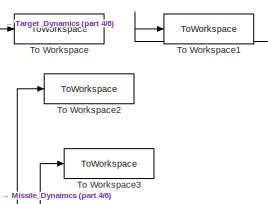
[diagram: root canvas - part 1/6, top left region]
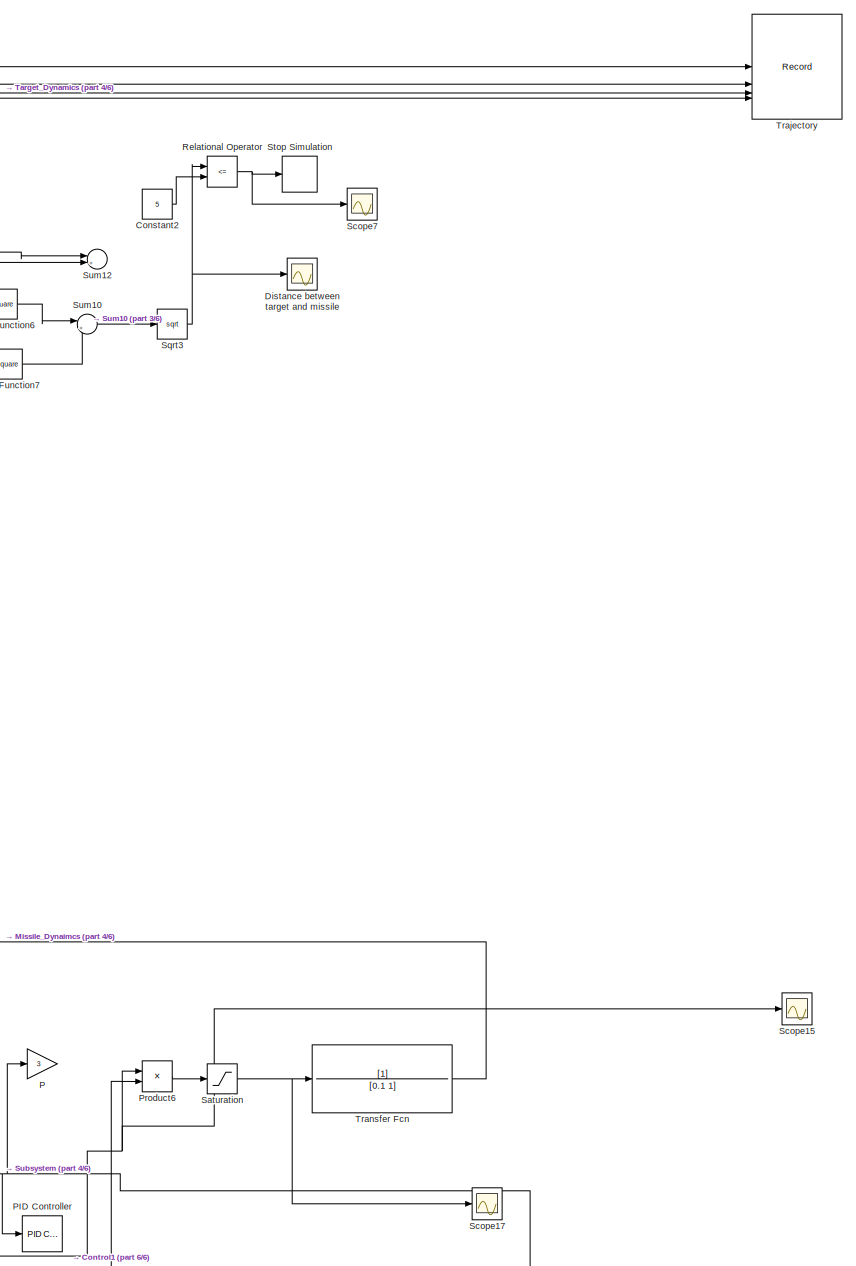
[diagram: root canvas - part 2/6, top right region]
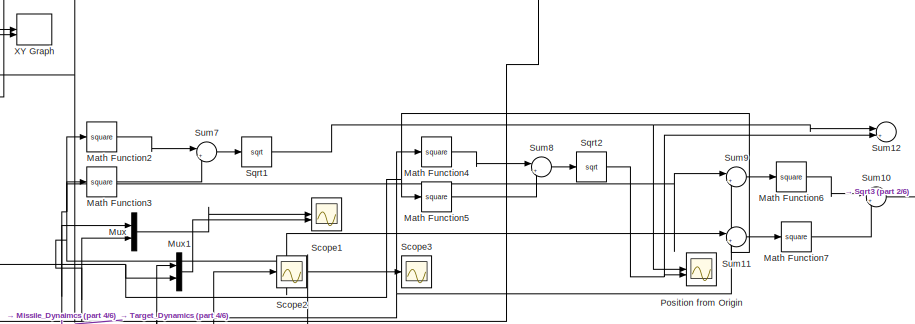
[diagram: root canvas - part 3/6, top center region]
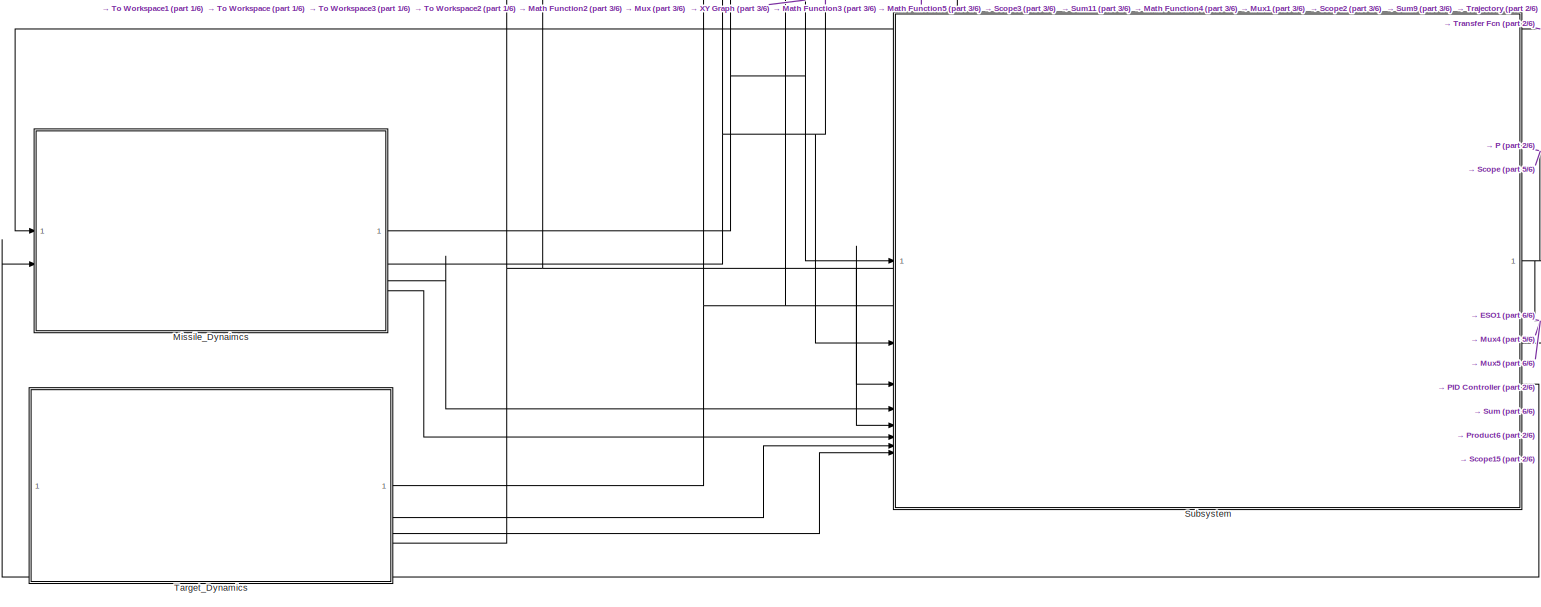
[diagram: root canvas - part 4/6, middle left region]
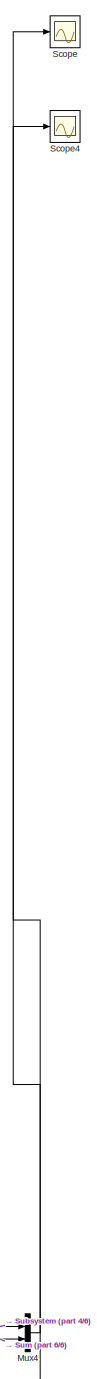
[diagram: root canvas - part 5/6, middle right region]
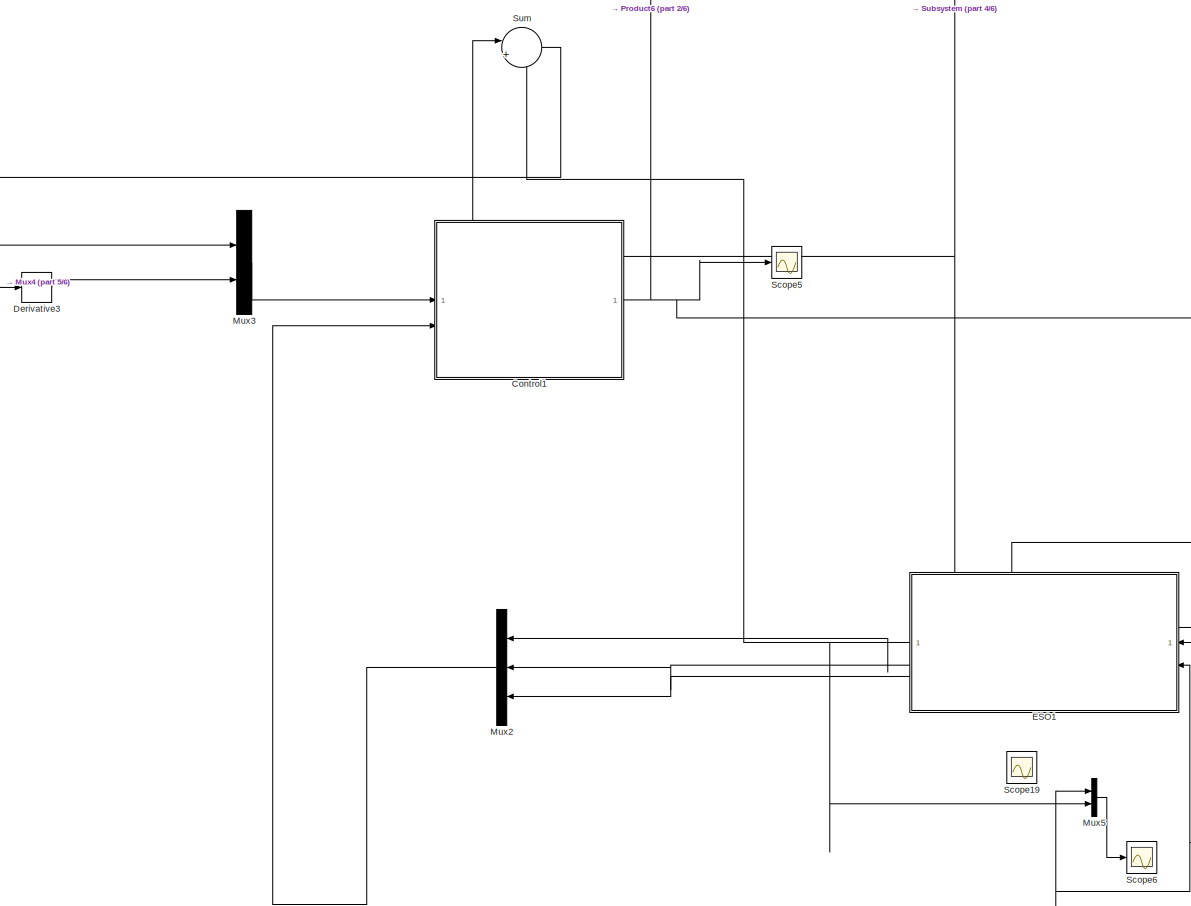
[diagram: root canvas - part 6/6, bottom right region]
MODEL slx_feaea4ac9e3f
KIND model
CONFIG AbsTol = auto
CONFIG EnableMultiTasking = off
CONFIG FixedStep = 0.01
CONFIG MaxStep = auto
CONFIG MinStep = auto
CONFIG RelTol = 1e-3
CONFIG SampleTimeConstraint = Unconstrained
CONFIG SolverName = ode4
CONFIG StartTime = 0.0
CONFIG StopTime = 100
BLOCK [Constant] Constant2
  Value = 5
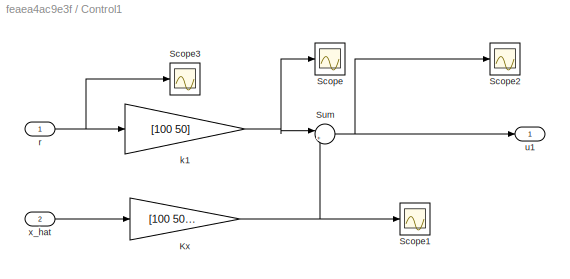
BLOCK [SubSystem] Control1
BLOCK [Gain] Control1/Kx
  Gain = [100 50 1]
  Multiplication = Matrix(K*u)
BLOCK [Scope] Control1/Scope
  Floating = off
  NumInputPorts = 1
  ScopeSpecificationString = Simulink.scopes.TimeScopeBlockCfg('CurrentConfiguration', extmgr.ConfigurationSet(extmgr.Configuration('Core','General UI',true),extmgr.Configuration('Core','Source UI',true),extmgr.Configuration('Sources','WiredSimulink',true,'DataLoggingVariableName','ScopeData1'),extmgr.Configuration('Visuals','Time Domain',true,'SerializedDisplays',{struct('MinYLimReal','-12501250.00000','MaxYLimReal','1125112...<+1611ch>
BLOCK [Scope] Control1/Scope1
  Floating = off
  NumInputPorts = 1
  ScopeSpecificationString = Simulink.scopes.TimeScopeBlockCfg('CurrentConfiguration', extmgr.ConfigurationSet(extmgr.Configuration('Core','General UI',true),extmgr.Configuration('Core','Source UI',true),extmgr.Configuration('Sources','WiredSimulink',true,'DataLoggingVariableName','ScopeData2'),extmgr.Configuration('Visuals','Time Domain',true,'SerializedDisplays',{struct('MinYLimReal','-2.49122','MaxYLimReal','22.42098','YLa...<+1520ch>
BLOCK [Scope] Control1/Scope2
  Floating = off
  NumInputPorts = 1
  ScopeSpecificationString = Simulink.scopes.TimeScopeBlockCfg('CurrentConfiguration', extmgr.ConfigurationSet(extmgr.Configuration('Core','General UI',true),extmgr.Configuration('Core','Source UI',true),extmgr.Configuration('Sources','WiredSimulink',true,'DataLoggingVariableName','ScopeData3'),extmgr.Configuration('Visuals','Time Domain',true,'SerializedDisplays',{struct('MinYLimReal','-19825.72604','MaxYLimReal','29326.5091...<+1516ch>
BLOCK [Scope] Control1/Scope3
  Floating = off
  NumInputPorts = 1
  ScopeSpecificationString = Simulink.scopes.TimeScopeBlockCfg('CurrentConfiguration', extmgr.ConfigurationSet(extmgr.Configuration('Core','General UI',true),extmgr.Configuration('Core','Source UI',true),extmgr.Configuration('Sources','WiredSimulink',true,'DataLoggingVariableName','ScopeData34'),extmgr.Configuration('Visuals','Time Domain',true,'SerializedDisplays',{struct('MinYLimReal','-0.00229','MaxYLimReal','0.00193','YLa...<+1547ch>
BLOCK [Sum] Control1/Sum
  Inputs = |+-
BLOCK [Gain] Control1/k1
  Gain = [100 50]
  Multiplication = Matrix(K*u)
BLOCK [Inport] Control1/r
BLOCK [Outport] Control1/u1
BLOCK [Inport] Control1/x_hat
  Port = 2
BLOCK [Derivative] Derivative3
BLOCK [Scope] Distance between target and missile
  Floating = off
  NumInputPorts = 1
  ScopeSpecificationString = Simulink.scopes.TimeScopeBlockCfg('CurrentConfiguration', extmgr.ConfigurationSet(extmgr.Configuration('Core','General UI',true),extmgr.Configuration('Core','Source UI',true),extmgr.Configuration('Sources','WiredSimulink',true,'DataLoggingVariableName','ScopeData1'),extmgr.Configuration('Visuals','Time Domain',true,'SerializedDisplays',{struct('MinYLimReal','-1373.20308','MaxYLimReal','12374.80034...<+1669ch>
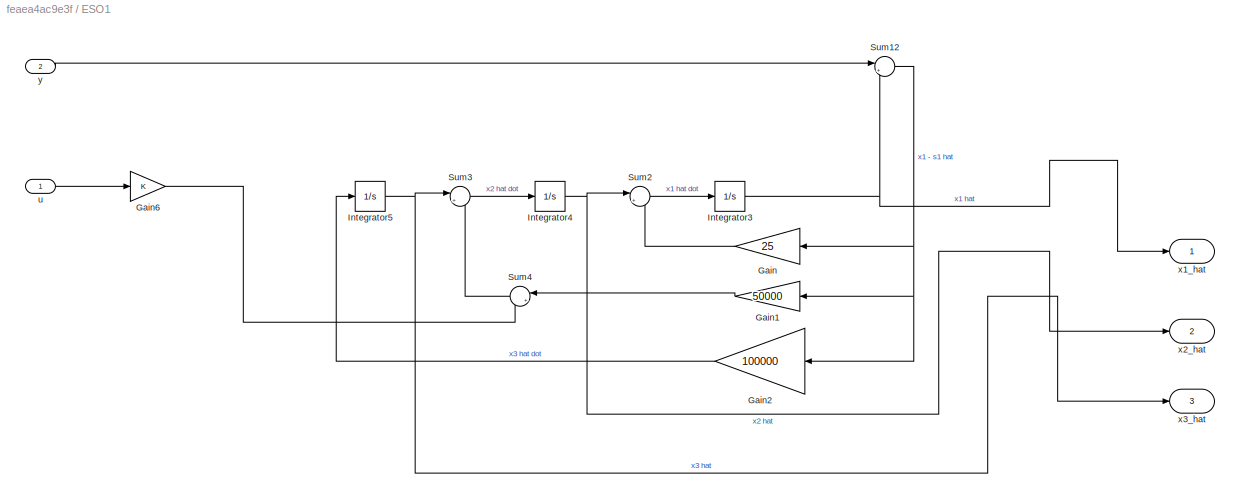
BLOCK [SubSystem] ESO1
  NameLocation = top
BLOCK [Gain] ESO1/Gain
  Gain = 25
  NameLocation = top
BLOCK [Gain] ESO1/Gain1
  Gain = 50000
  NameLocation = top
BLOCK [Gain] ESO1/Gain2
  Gain = 100000
  NameLocation = top
BLOCK [Gain] ESO1/Gain6
BLOCK [Integrator] ESO1/Integrator3
BLOCK [Integrator] ESO1/Integrator4
BLOCK [Integrator] ESO1/Integrator5
BLOCK [Sum] ESO1/Sum12
  Inputs = |+-
BLOCK [Sum] ESO1/Sum2
  Inputs = |++
BLOCK [Sum] ESO1/Sum3
  Inputs = |++
BLOCK [Sum] ESO1/Sum4
  Inputs = |++
  NameLocation = top
BLOCK [Inport] ESO1/u
BLOCK [Outport] ESO1/x1_hat
BLOCK [Outport] ESO1/x2_hat
  Port = 2
BLOCK [Outport] ESO1/x3_hat
  Port = 3
BLOCK [Inport] ESO1/y
  Port = 2
BLOCK [Math] Math Function2
  Operator = square
BLOCK [Math] Math Function3
  Operator = square
BLOCK [Math] Math Function4
  NameLocation = left
  Operator = square
BLOCK [Math] Math Function5
  Operator = square
BLOCK [Math] Math Function6
  Operator = square
BLOCK [Math] Math Function7
  Operator = square
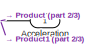
[diagram: Missile_Dynaimcs - part 1/3, top right region]
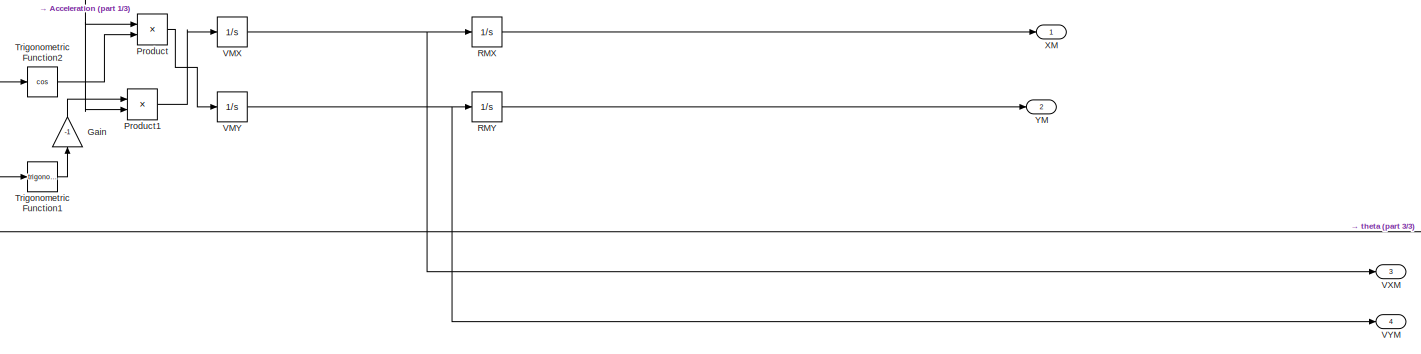
[diagram: Missile_Dynaimcs - part 2/3, center side, full height]
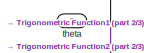
[diagram: Missile_Dynaimcs - part 3/3, top right region]
BLOCK [SubSystem] Missile_Dynaimcs
BLOCK [Inport] Missile_Dynaimcs/Acceleration
BLOCK [Gain] Missile_Dynaimcs/Gain
  Gain = -1
  NameLocation = right
BLOCK [Product] Missile_Dynaimcs/Product
BLOCK [Product] Missile_Dynaimcs/Product1
BLOCK [Integrator] Missile_Dynaimcs/RMX
BLOCK [Integrator] Missile_Dynaimcs/RMY
  InitialCondition = 3000
BLOCK [Trigonometry] Missile_Dynaimcs/Trigonometric Function1
BLOCK [Trigonometry] Missile_Dynaimcs/Trigonometric Function2
  Operator = cos
BLOCK [Integrator] Missile_Dynaimcs/VMX
  InitialCondition = 600
BLOCK [Integrator] Missile_Dynaimcs/VMY
  InitialCondition = 100
BLOCK [Outport] Missile_Dynaimcs/VXM
  Port = 3
BLOCK [Outport] Missile_Dynaimcs/VYM
  Port = 4
BLOCK [Outport] Missile_Dynaimcs/XM
BLOCK [Outport] Missile_Dynaimcs/YM
  Port = 2
BLOCK [Inport] Missile_Dynaimcs/theta
  Port = 2
BLOCK [Mux] Mux
  DisplayOption = bar
  Inputs = 2
BLOCK [Mux] Mux1
  DisplayOption = bar
  Inputs = 2
BLOCK [Mux] Mux2
  DisplayOption = bar
  Inputs = 3
  NameLocation = top
BLOCK [Mux] Mux3
  DisplayOption = bar
  Inputs = 2
BLOCK [Mux] Mux4
  DisplayOption = bar
  Inputs = 2
BLOCK [Mux] Mux5
  DisplayOption = bar
  Inputs = 2
BLOCK [Gain] P
  Gain = 3
BLOCK [Reference] PID Controller  REF=slpidlib/PID Controller
  LibrarySourceBlock = simulink/Continuous/PID Controller
  SourceBlock = slpidlib/PID Controller
  SourceType = PID 1dof
BLOCK [Scope] Position from Origin
  Floating = off
  NumInputPorts = 2
  ScopeSpecificationString = Simulink.scopes.TimeScopeBlockCfg('CurrentConfiguration', extmgr.ConfigurationSet(extmgr.Configuration('Core','General UI',true),extmgr.Configuration('Core','Source UI',true),extmgr.Configuration('Sources','WiredSimulink',true),extmgr.Configuration('Visuals','Time Domain',true,'SerializedDisplays',{struct('MinYLimReal','-803.82561','MaxYLimReal','37234.43052','YLabelReal','','MinYLimMag',' 0.00000...<+1874ch>
BLOCK [Product] Product6
BLOCK [RelationalOperator] Relational Operator
  InputSameDT = off
  Operator = <=
  OutDataTypeStr = boolean
  RndMeth = Simplest
BLOCK [Saturate] Saturation
  LowerLimit = -50
  UpperLimit = 50
BLOCK [Scope] Scope
  Floating = off
  NumInputPorts = 1
  ScopeSpecificationString = Simulink.scopes.TimeScopeBlockCfg('CurrentConfiguration', extmgr.ConfigurationSet(extmgr.Configuration('Core','General UI',true),extmgr.Configuration('Core','Source UI',true),extmgr.Configuration('Sources','WiredSimulink',true,'DataLoggingVariableName','ScopeData14'),extmgr.Configuration('Visuals','Time Domain',true,'SerializedDisplays',{struct('MinYLimReal','-0.00125','MaxYLimReal','0.00014','YLa...<+1483ch>
BLOCK [Scope] Scope1
  Floating = off
  NumInputPorts = 2
  ScopeSpecificationString = Simulink.scopes.TimeScopeBlockCfg('CurrentConfiguration', extmgr.ConfigurationSet(extmgr.Configuration('Core','General UI',true),extmgr.Configuration('Core','Source UI',true),extmgr.Configuration('Sources','WiredSimulink',true,'DataLoggingVariableName','ScopeData1'),extmgr.Configuration('Visuals','Time Domain',true,'SerializedDisplays',{struct('MinYLimReal','-5125.01431','MaxYLimReal','46125.12875...<+1525ch>
BLOCK [Scope] Scope15
  Floating = off
  NumInputPorts = 1
  ScopeSpecificationString = Simulink.scopes.TimeScopeBlockCfg('CurrentConfiguration', extmgr.ConfigurationSet(extmgr.Configuration('Core','General UI',true),extmgr.Configuration('Core','Source UI',true),extmgr.Configuration('Sources','WiredSimulink',true,'DataLoggingVariableName','ScopeData18'),extmgr.Configuration('Visuals','Time Domain',true,'SerializedDisplays',{struct('MinYLimReal','389.59084','MaxYLimReal','456.71213','...<+1474ch>
BLOCK [Scope] Scope17
  Floating = off
  NumInputPorts = 1
  ScopeSpecificationString = Simulink.scopes.TimeScopeBlockCfg('CurrentConfiguration', extmgr.ConfigurationSet(extmgr.Configuration('Core','General UI',true),extmgr.Configuration('Core','Source UI',true),extmgr.Configuration('Sources','WiredSimulink',true,'DataLoggingVariableName','ScopeData19'),extmgr.Configuration('Visuals','Time Domain',true,'SerializedDisplays',{struct('MinYLimReal','19.81187','MaxYLimReal','20.02153','YL...<+1484ch>
BLOCK [Scope] Scope19
  Floating = off
  NumInputPorts = 1
  ScopeSpecificationString = Simulink.scopes.TimeScopeBlockCfg('CurrentConfiguration', extmgr.ConfigurationSet(extmgr.Configuration('Core','General UI',true),extmgr.Configuration('Core','Source UI',true),extmgr.Configuration('Sources','WiredSimulink',true,'DataLoggingVariableName','ScopeData20'),extmgr.Configuration('Visuals','Time Domain',true,'SerializedDisplays',{struct('MinYLimReal','-4.80287','MaxYLimReal','2.83483','YLa...<+1535ch>
BLOCK [Scope] Scope2
  Floating = off
  NumInputPorts = 1
  ScopeSpecificationString = Simulink.scopes.TimeScopeBlockCfg('CurrentConfiguration', extmgr.ConfigurationSet(extmgr.Configuration('Core','General UI',true),extmgr.Configuration('Core','Source UI',true),extmgr.Configuration('Sources','WiredSimulink',true,'DataLoggingVariableName','ScopeData2'),extmgr.Configuration('Visuals','Time Domain',true,'SerializedDisplays',{struct('MinYLimReal','4756.045','MaxYLimReal','63289.355','YL...<+1490ch>
BLOCK [Scope] Scope3
  Floating = off
  NumInputPorts = 1
  ScopeSpecificationString = Simulink.scopes.TimeScopeBlockCfg('CurrentConfiguration', extmgr.ConfigurationSet(extmgr.Configuration('Core','General UI',true),extmgr.Configuration('Core','Source UI',true),extmgr.Configuration('Sources','WiredSimulink',true,'DataLoggingVariableName','ScopeData3'),extmgr.Configuration('Visuals','Time Domain',true,'SerializedDisplays',{struct('MinYLimReal','-2228.5335','MaxYLimReal','50056.8015',...<+1471ch>
BLOCK [Scope] Scope4
  Floating = off
  NumInputPorts = 1
  ScopeSpecificationString = Simulink.scopes.TimeScopeBlockCfg('CurrentConfiguration', extmgr.ConfigurationSet(extmgr.Configuration('Core','General UI',true),extmgr.Configuration('Core','Source UI',true),extmgr.Configuration('Sources','WiredSimulink',true,'DataLoggingVariableName','ScopeData15'),extmgr.Configuration('Visuals','Time Domain',true,'SerializedDisplays',{struct('MinYLimReal','-40.98529','MaxYLimReal','10.18515','Y...<+1491ch>
BLOCK [Scope] Scope5
  Floating = off
  NumInputPorts = 1
  ScopeSpecificationString = Simulink.scopes.TimeScopeBlockCfg('CurrentConfiguration', extmgr.ConfigurationSet(extmgr.Configuration('Core','General UI',true),extmgr.Configuration('Core','Source UI',true),extmgr.Configuration('Sources','WiredSimulink',true,'DataLoggingVariableName','ScopeData16'),extmgr.Configuration('Visuals','Time Domain',true,'SerializedDisplays',{struct('MinYLimReal','-166.77681','MaxYLimReal','20.69806','...<+1469ch>
BLOCK [Scope] Scope6
  Floating = off
  NumInputPorts = 1
  ScopeSpecificationString = Simulink.scopes.TimeScopeBlockCfg('CurrentConfiguration', extmgr.ConfigurationSet(extmgr.Configuration('Core','General UI',true),extmgr.Configuration('Core','Source UI',true),extmgr.Configuration('Sources','WiredSimulink',true,'DataLoggingVariableName','ScopeData17'),extmgr.Configuration('Visuals','Time Domain',true,'SerializedDisplays',{struct('MinYLimReal','-0.21651743','MaxYLimReal','-0.2165170...<+1519ch>
BLOCK [Scope] Scope7
  Floating = off
  NumInputPorts = 1
  ScopeSpecificationString = Simulink.scopes.TimeScopeBlockCfg('CurrentConfiguration', extmgr.ConfigurationSet(extmgr.Configuration('Core','General UI',true),extmgr.Configuration('Core','Source UI',true),extmgr.Configuration('Sources','WiredSimulink',true,'DataLoggingVariableName','ScopeData2'),extmgr.Configuration('Visuals','Time Domain',true,'SerializedDisplays',{struct('MinYLimReal','-0.125','MaxYLimReal','1.125','YLabelRe...<+1900ch>
BLOCK [Sqrt] Sqrt1
BLOCK [Sqrt] Sqrt2
BLOCK [Sqrt] Sqrt3
BLOCK [Stop] Stop Simulation
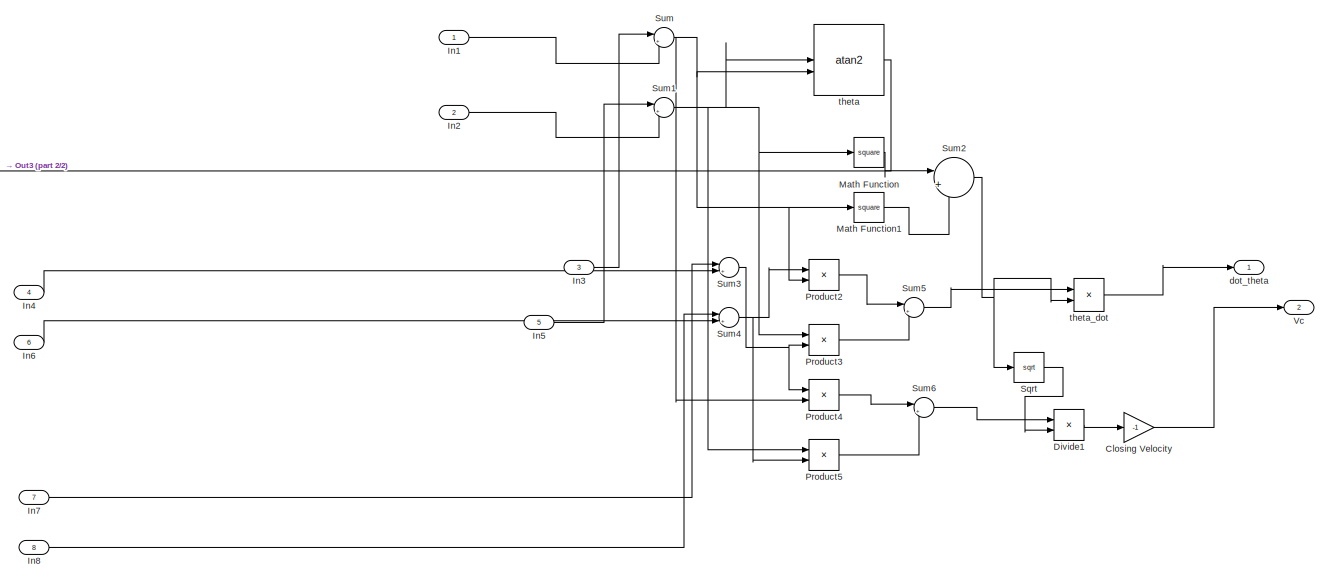
[diagram: Subsystem - part 1/2, most of the canvas]
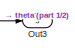
[diagram: Subsystem - part 2/2, middle left region]
BLOCK [SubSystem] Subsystem
BLOCK [Gain] Subsystem/Closing Velocity
  Gain = -1
BLOCK [Product] Subsystem/Divide1
  Inputs = */
BLOCK [Inport] Subsystem/In1
BLOCK [Inport] Subsystem/In2
  Port = 2
BLOCK [Inport] Subsystem/In3
  Port = 3
BLOCK [Inport] Subsystem/In4
  Port = 4
BLOCK [Inport] Subsystem/In5
  Port = 5
BLOCK [Inport] Subsystem/In6
  Port = 6
BLOCK [Inport] Subsystem/In7
  Port = 7
BLOCK [Inport] Subsystem/In8
  Port = 8
BLOCK [Math] Subsystem/Math Function
  Operator = square
BLOCK [Math] Subsystem/Math Function1
  Operator = square
BLOCK [Outport] Subsystem/Out3
  Port = 3
BLOCK [Product] Subsystem/Product2
BLOCK [Product] Subsystem/Product3
BLOCK [Product] Subsystem/Product4
BLOCK [Product] Subsystem/Product5
BLOCK [Sqrt] Subsystem/Sqrt
BLOCK [Sum] Subsystem/Sum
  Inputs = |+-
BLOCK [Sum] Subsystem/Sum1
  Inputs = |+-
BLOCK [Sum] Subsystem/Sum2
  Inputs = |++
BLOCK [Sum] Subsystem/Sum3
  Inputs = |+-
BLOCK [Sum] Subsystem/Sum4
  Inputs = |+-
BLOCK [Sum] Subsystem/Sum5
  Inputs = |+-
BLOCK [Sum] Subsystem/Sum6
  Inputs = |++
BLOCK [Outport] Subsystem/Vc
  Port = 2
BLOCK [Outport] Subsystem/dot_theta
BLOCK [Trigonometry] Subsystem/theta
  Operator = atan2
BLOCK [Product] Subsystem/theta_dot
  Inputs = */
BLOCK [Sum] Sum
  Inputs = |++
BLOCK [Sum] Sum10
  Inputs = |++
BLOCK [Sum] Sum11
  Inputs = |+-
BLOCK [Sum] Sum12
  Inputs = |+-
BLOCK [Sum] Sum7
  Inputs = |++
BLOCK [Sum] Sum8
  Inputs = |++
BLOCK [Sum] Sum9
  Inputs = |+-
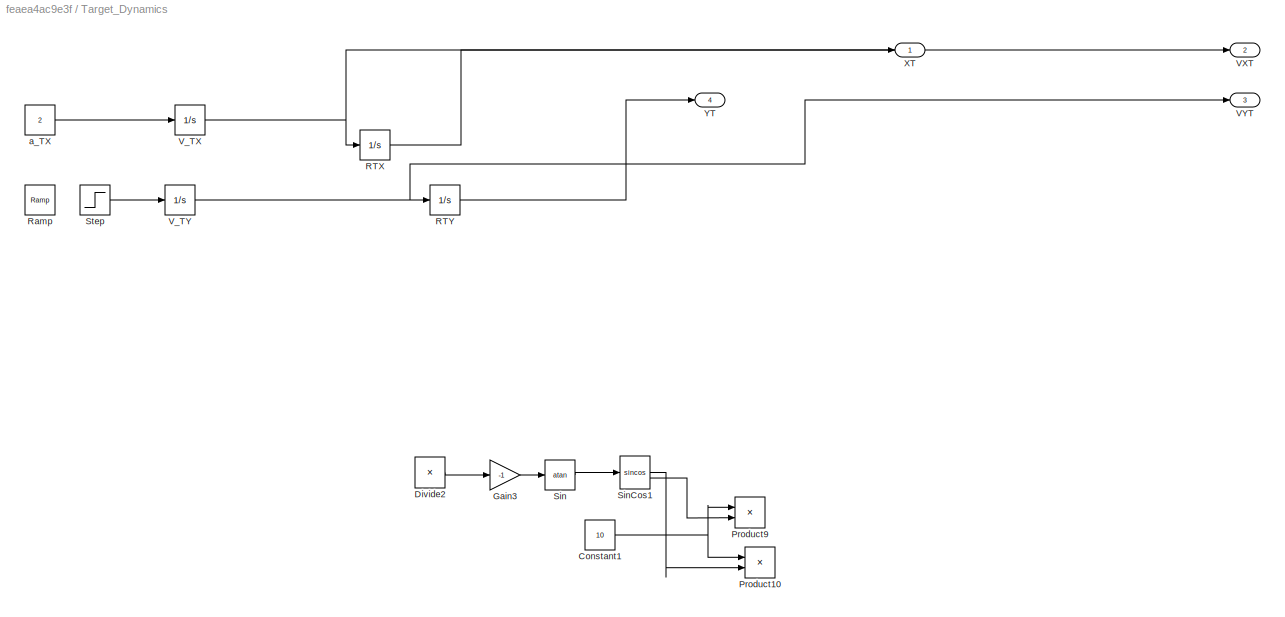
BLOCK [SubSystem] Target_Dynamics
BLOCK [Constant] Target_Dynamics/Constant1
  Commented = on
  Value = 10
BLOCK [Product] Target_Dynamics/Divide2
  Commented = on
  Inputs = */
BLOCK [Gain] Target_Dynamics/Gain3
  Commented = on
  Gain = -1
BLOCK [Product] Target_Dynamics/Product10
  Commented = on
BLOCK [Product] Target_Dynamics/Product9
  Commented = on
BLOCK [Integrator] Target_Dynamics/RTX
  InitialCondition = 11000
BLOCK [Integrator] Target_Dynamics/RTY
  InitialCondition = 3000
BLOCK [Reference] Target_Dynamics/Ramp  REF=simulink/Sources/Ramp
  SourceBlock = simulink/Sources/Ramp
  SourceType = Ramp
BLOCK [Trigonometry] Target_Dynamics/Sin
  Commented = on
  Operator = atan
BLOCK [Trigonometry] Target_Dynamics/SinCos1
  Commented = on
  Operator = sincos
BLOCK [Step] Target_Dynamics/Step
  After = -10
  Before = -4
  SampleTime = 0
  Time = 15
BLOCK [Outport] Target_Dynamics/VXT
  Port = 2
BLOCK [Outport] Target_Dynamics/VYT
  Port = 3
BLOCK [Integrator] Target_Dynamics/V_TX
  InitialCondition = 150
BLOCK [Integrator] Target_Dynamics/V_TY
  InitialCondition = 100
BLOCK [Outport] Target_Dynamics/XT
BLOCK [Outport] Target_Dynamics/YT
  Port = 4
BLOCK [Constant] Target_Dynamics/a_TX
  Value = 2
BLOCK [ToWorkspace] To Workspace
  FixptAsFi = on
  MaxDataPoints = inf
  SampleTime = -1
  SaveFormat = Timeseries
  VariableName = X_t
BLOCK [ToWorkspace] To Workspace1
  FixptAsFi = on
  MaxDataPoints = inf
  SampleTime = -1
  SaveFormat = Timeseries
  VariableName = Y_t
BLOCK [ToWorkspace] To Workspace2
  FixptAsFi = on
  MaxDataPoints = inf
  SampleTime = -1
  SaveFormat = Timeseries
  VariableName = X_M
BLOCK [ToWorkspace] To Workspace3
  FixptAsFi = on
  MaxDataPoints = inf
  SampleTime = -1
  SaveFormat = Timeseries
  VariableName = Y_M
BLOCK [Record] Trajectory
  CompatibilityTag = XY
  FileSettingsInternal = {"entries":[{"content":{"excelSettings":{"content":{},"type":"Streamout.ExcelSettings"}},"type":"Streamout.FileSettingStorage","uuid":""}],"packageUris":["http:\/\/schema.mathworks.com\/mf0\/streamout_blocks\/R2020a"],"version":"1.0"}
  Layout = [1 1]
  SignalsInternal = {"entries":[{"content":{"signals":[{"content":{"blockPath":[],"dimensions":[1],"domain":"","lineColor":"#fe330a","lineWidth":2,"plots":[ 1 ],"port":1,"sid":[""],"signalID":1,"signalName":"Missile_Dynaimcs:1"},"type":"RecordBlkView.Signal","uuid":""},{"content":{"blockPath":[],"dimensions":[1],"domain":"","lineColor":"#d95319","lineWidth":2,"plots":[ 1 ],"port":2,"sid":[""],"signalID":2,"signalName...<+638ch>
  VisualizationBindings = {"xyplotplugin":{"info":[{"series":[{"bindingParametersList":[{"parameter":"X-Axis","signalID":1,"signalName":"Missile_Dynaimcs:1"},{"parameter":"Y-Axis","signalID":2,"signalName":"Missile_Dynaimcs:2"}],"seriesID":0},{"bindingParametersList":[{"parameter":"X-Axis","signalID":3,"signalName":"Target_Dynamics:1"},{"parameter":"Y-Axis","signalID":4,"signalName":"Target_Dynamics:4"}],"seriesID":1}],"su...<+14ch>
BLOCK [TransferFcn] Transfer Fcn
  Denominator = [0.1 1]
BLOCK [Record] XY Graph
  CompatibilityTag = XY
  FileSettingsInternal = {"entries":[{"content":{"excelSettings":{"content":{},"type":"Streamout.ExcelSettings"}},"type":"Streamout.FileSettingStorage","uuid":""}],"packageUris":["http:\/\/schema.mathworks.com\/mf0\/streamout_blocks\/R2020a"],"version":"1.0"}
  Layout = [1 1]
  SignalsInternal = {"entries":[{"content":{"signals":[{"content":{"blockPath":[],"dimensions":[1],"domain":"","lineColor":"#64d413","lineWidth":2,"port":1,"sid":[""],"signalID":1,"signalName":"Missile_Dynaimcs:1"},"type":"RecordBlkView.Signal","uuid":""},{"content":{"blockPath":[],"dimensions":[1],"domain":"","lineColor":"#ff13a6","lineWidth":2,"port":2,"sid":[""],"signalID":2,"signalName":"Missile_Dynaimcs:2"},"typ...<+182ch>
  VisualizationBindings = {"xyplotplugin":{"info":[{"series":[],"subplotID":1}]}}
LINE Constant2:1 -> Relational Operator:2
NET Control1/Kx:1 -> Control1/Scope1:1, Control1/Sum:2
NET Control1/Sum:1 -> Control1/Scope2:1, Control1/u1:1
NET Control1/k1:1 -> Control1/Scope:1, Control1/Sum:1
NET Control1/r:1 -> Control1/Scope3:1, Control1/k1:1
LINE Control1/x_hat:1 -> Control1/Kx:1
NET Control1:1 -> ESO1:1, Product6:2, Scope5:1
LINE Derivative3:1 -> Mux3:2
LINE ESO1/Gain1:1 -> ESO1/Sum4:1
LINE ESO1/Gain2:1 -> ESO1/Integrator5:1
LINE ESO1/Gain6:1 -> ESO1/Sum4:2
LINE ESO1/Gain:1 -> ESO1/Sum2:2
NET ESO1/Integrator3:1 -> ESO1/Sum12:2, ESO1/x1_hat:1
NET ESO1/Integrator4:1 -> ESO1/Sum2:1, ESO1/x2_hat:1
NET ESO1/Integrator5:1 -> ESO1/Sum3:1, ESO1/x3_hat:1
NET ESO1/Sum12:1 -> ESO1/Gain1:1, ESO1/Gain2:1, ESO1/Gain:1
LINE ESO1/Sum2:1 -> ESO1/Integrator3:1
LINE ESO1/Sum3:1 -> ESO1/Integrator4:1
LINE ESO1/Sum4:1 -> ESO1/Sum3:2
LINE ESO1/u:1 -> ESO1/Gain6:1
LINE ESO1/y:1 -> ESO1/Sum12:1
NET ESO1:1 -> Mux2:1, Mux5:2, Sum:2
LINE ESO1:2 -> Mux2:2
LINE ESO1:3 -> Mux2:3
LINE Math Function2:1 -> Sum7:1
LINE Math Function3:1 -> Sum7:2
LINE Math Function4:1 -> Sum8:1
LINE Math Function5:1 -> Sum8:2
LINE Math Function6:1 -> Sum10:1
LINE Math Function7:1 -> Sum10:2
NET Missile_Dynaimcs/Acceleration:1 -> Missile_Dynaimcs/Product1:2, Missile_Dynaimcs/Product:1
LINE Missile_Dynaimcs/Gain:1 -> Missile_Dynaimcs/Product1:1
LINE Missile_Dynaimcs/Product1:1 -> Missile_Dynaimcs/VMX:1
LINE Missile_Dynaimcs/Product:1 -> Missile_Dynaimcs/VMY:1
LINE Missile_Dynaimcs/RMX:1 -> Missile_Dynaimcs/XM:1
LINE Missile_Dynaimcs/RMY:1 -> Missile_Dynaimcs/YM:1
LINE Missile_Dynaimcs/Trigonometric Function1:1 -> Missile_Dynaimcs/Gain:1
LINE Missile_Dynaimcs/Trigonometric Function2:1 -> Missile_Dynaimcs/Product:2
NET Missile_Dynaimcs/VMX:1 -> Missile_Dynaimcs/RMX:1, Missile_Dynaimcs/VXM:1
NET Missile_Dynaimcs/VMY:1 -> Missile_Dynaimcs/RMY:1, Missile_Dynaimcs/VYM:1
NET Missile_Dynaimcs/theta:1 -> Missile_Dynaimcs/Trigonometric Function1:1, Missile_Dynaimcs/Trigonometric Function2:1
NET Missile_Dynaimcs:1 -> Math Function2:1, Mux:1, Subsystem:1, Sum9:1, To Workspace2:1, Trajectory:1, XY Graph:1
NET Missile_Dynaimcs:2 -> Math Function3:1, Mux:2, Subsystem:2, Sum11:1, To Workspace3:1, Trajectory:2, XY Graph:2
LINE Missile_Dynaimcs:3 -> Subsystem:4
LINE Missile_Dynaimcs:4 -> Subsystem:6
LINE Mux1:1 -> Scope1:2
LINE Mux2:1 -> Control1:2
LINE Mux3:1 -> Control1:1
LINE Mux4:1 -> Scope4:1
LINE Mux5:1 -> Scope6:1
LINE Mux:1 -> Scope1:1
LINE Product6:1 -> Saturation:1
NET Relational Operator:1 -> Scope7:1, Stop Simulation:1
NET Saturation:1 -> Scope17:1, Transfer Fcn:1
NET Sqrt1:1 -> Position from Origin:1, Sum12:1
NET Sqrt2:1 -> Position from Origin:2, Sum12:2
NET Sqrt3:1 -> Distance between target and missile:1, Relational Operator:1
LINE Subsystem/Closing Velocity:1 -> Subsystem/Vc:1
LINE Subsystem/Divide1:1 -> Subsystem/Closing Velocity:1
LINE Subsystem/In1:1 -> Subsystem/Sum:2
LINE Subsystem/In2:1 -> Subsystem/Sum1:2
LINE Subsystem/In3:1 -> Subsystem/Sum:1
LINE Subsystem/In4:1 -> Subsystem/Sum3:2
LINE Subsystem/In5:1 -> Subsystem/Sum1:1
LINE Subsystem/In6:1 -> Subsystem/Sum4:2
LINE Subsystem/In7:1 -> Subsystem/Sum3:1
LINE Subsystem/In8:1 -> Subsystem/Sum4:1
LINE Subsystem/Math Function1:1 -> Subsystem/Sum2:2
LINE Subsystem/Math Function:1 -> Subsystem/Sum2:1
LINE Subsystem/Product2:1 -> Subsystem/Sum5:1
LINE Subsystem/Product3:1 -> Subsystem/Sum5:2
LINE Subsystem/Product4:1 -> Subsystem/Sum6:1
LINE Subsystem/Product5:1 -> Subsystem/Sum6:2
LINE Subsystem/Sqrt:1 -> Subsystem/Divide1:2
NET Subsystem/Sum1:1 -> Subsystem/Math Function:1, Subsystem/Product3:1, Subsystem/Product5:1, Subsystem/theta:1
NET Subsystem/Sum2:1 -> Subsystem/Sqrt:1, Subsystem/theta_dot:2
NET Subsystem/Sum3:1 -> Subsystem/Product3:2, Subsystem/Product4:1
NET Subsystem/Sum4:1 -> Subsystem/Product2:1, Subsystem/Product5:2
LINE Subsystem/Sum5:1 -> Subsystem/theta_dot:1
LINE Subsystem/Sum6:1 -> Subsystem/Divide1:1
NET Subsystem/Sum:1 -> Subsystem/Math Function1:1, Subsystem/Product2:2, Subsystem/Product4:2, Subsystem/theta:2
LINE Subsystem/theta:1 -> Subsystem/Out3:1
LINE Subsystem/theta_dot:1 -> Subsystem/dot_theta:1
NET Subsystem:1 -> ESO1:2, Mux4:1, Mux5:1, P:1, PID Controller:1, Scope:1, Sum:1
NET Subsystem:2 -> Product6:1, Scope15:1
LINE Subsystem:3 -> Missile_Dynaimcs:2
LINE Sum10:1 -> Sqrt3:1
LINE Sum11:1 -> Math Function7:1
LINE Sum7:1 -> Sqrt1:1
LINE Sum8:1 -> Sqrt2:1
LINE Sum9:1 -> Math Function6:1
NET Sum:1 -> Derivative3:1, Mux3:1, Mux4:2
NET Target_Dynamics/Constant1:1 -> Target_Dynamics/Product10:1, Target_Dynamics/Product9:1
LINE Target_Dynamics/Divide2:1 -> Target_Dynamics/Gain3:1
LINE Target_Dynamics/Gain3:1 -> Target_Dynamics/Sin:1
LINE Target_Dynamics/RTX:1 -> Target_Dynamics/XT:1
LINE Target_Dynamics/RTY:1 -> Target_Dynamics/YT:1
LINE Target_Dynamics/Sin:1 -> Target_Dynamics/SinCos1:1
LINE Target_Dynamics/SinCos1:1 -> Target_Dynamics/Product10:2
LINE Target_Dynamics/SinCos1:2 -> Target_Dynamics/Product9:2
LINE Target_Dynamics/Step:1 -> Target_Dynamics/V_TY:1
NET Target_Dynamics/V_TX:1 -> Target_Dynamics/RTX:1, Target_Dynamics/VXT:1
NET Target_Dynamics/V_TY:1 -> Target_Dynamics/RTY:1, Target_Dynamics/VYT:1
LINE Target_Dynamics/a_TX:1 -> Target_Dynamics/V_TX:1
NET Target_Dynamics:1 -> Math Function4:1, Mux1:1, Scope2:1, Subsystem:3, Sum9:2, To Workspace:1, Trajectory:3
LINE Target_Dynamics:2 -> Subsystem:7
LINE Target_Dynamics:3 -> Subsystem:8
NET Target_Dynamics:4 -> Math Function5:1, Mux1:2, Scope3:1, Subsystem:5, Sum11:2, To Workspace1:1, Trajectory:4
LINE Transfer Fcn:1 -> Missile_Dynaimcs:1
note: NET lines group one-source signal fan-out (src -> all destinations, sorted); 1:1 wires keep LINE
